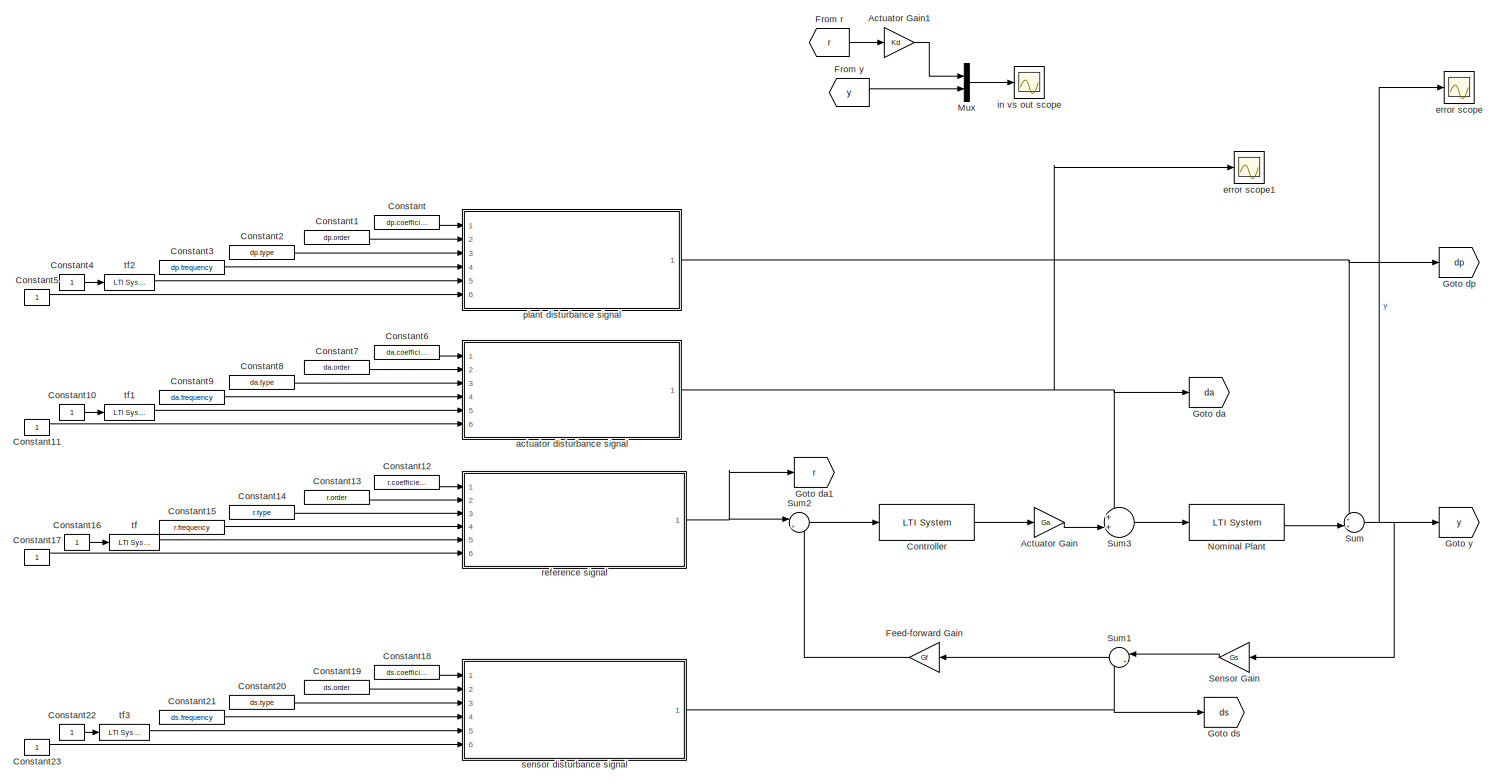
[diagram: root canvas - part 1/1, most of the canvas]
MODEL system_model_user_friendly
KIND model
BLOCK [Gain] Actuator Gain
  Gain = Ga
  OutDataTypeMode = Inherit via internal rule
  OutDataTypeStr = Inherit: Inherit via internal rule
  ParamDataTypeStr = Inherit: Inherit via internal rule
  ParameterDataTypeMode = Inherit via internal rule
  SID = 92
  SaturateOnIntegerOverflow = off
BLOCK [Gain] Actuator Gain1
  Gain = Kd
  OutDataTypeMode = Inherit via internal rule
  OutDataTypeStr = Inherit: Inherit via internal rule
  ParamDataTypeStr = Inherit: Inherit via internal rule
  ParameterDataTypeMode = Inherit via internal rule
  SID = 173
  SaturateOnIntegerOverflow = off
BLOCK [Constant] Constant
  OutDataType = fixdt(1, 16)
  OutScaling = 2^0
  SID = 93
  Value = dp.coefficient
BLOCK [Constant] Constant1
  OutDataType = fixdt(1, 16)
  OutScaling = 2^0
  SID = 94
  Value = dp.order
BLOCK [Constant] Constant10
  OutDataType = fixdt(1, 16)
  OutScaling = 2^0
  SID = 95
BLOCK [Constant] Constant11
  OutDataType = fixdt(1, 16)
  OutScaling = 2^0
  SID = 169
BLOCK [Constant] Constant12
  OutDataType = fixdt(1, 16)
  OutScaling = 2^0
  SID = 96
  Value = r.coefficient
BLOCK [Constant] Constant13
  OutDataType = fixdt(1, 16)
  OutScaling = 2^0
  SID = 97
  Value = r.order
BLOCK [Constant] Constant14
  OutDataType = fixdt(1, 16)
  OutScaling = 2^0
  SID = 98
  Value = r.type
BLOCK [Constant] Constant15
  OutDataType = fixdt(1, 16)
  OutScaling = 2^0
  SID = 99
  Value = r.frequency
BLOCK [Constant] Constant16
  OutDataType = fixdt(1, 16)
  OutScaling = 2^0
  SID = 100
BLOCK [Constant] Constant17
  OutDataType = fixdt(1, 16)
  OutScaling = 2^0
  SID = 170
BLOCK [Constant] Constant18
  OutDataType = fixdt(1, 16)
  OutScaling = 2^0
  SID = 101
  Value = ds.coefficient
BLOCK [Constant] Constant19
  OutDataType = fixdt(1, 16)
  OutScaling = 2^0
  SID = 102
  Value = ds.order
BLOCK [Constant] Constant2
  OutDataType = fixdt(1, 16)
  OutScaling = 2^0
  SID = 103
  Value = dp.type
BLOCK [Constant] Constant20
  OutDataType = fixdt(1, 16)
  OutScaling = 2^0
  SID = 104
  Value = ds.type
BLOCK [Constant] Constant21
  OutDataType = fixdt(1, 16)
  OutScaling = 2^0
  SID = 105
  Value = ds.frequency
BLOCK [Constant] Constant22
  OutDataType = fixdt(1, 16)
  OutScaling = 2^0
  SID = 106
BLOCK [Constant] Constant23
  OutDataType = fixdt(1, 16)
  OutScaling = 2^0
  SID = 171
BLOCK [Constant] Constant3
  OutDataType = fixdt(1, 16)
  OutScaling = 2^0
  SID = 107
  Value = dp.frequency
BLOCK [Constant] Constant4
  OutDataType = fixdt(1, 16)
  OutScaling = 2^0
  SID = 108
BLOCK [Constant] Constant5
  OutDataType = fixdt(1, 16)
  OutScaling = 2^0
  SID = 168
BLOCK [Constant] Constant6
  OutDataType = fixdt(1, 16)
  OutScaling = 2^0
  SID = 109
  Value = da.coefficient
BLOCK [Constant] Constant7
  OutDataType = fixdt(1, 16)
  OutScaling = 2^0
  SID = 110
  Value = da.order
BLOCK [Constant] Constant8
  OutDataType = fixdt(1, 16)
  OutScaling = 2^0
  SID = 111
  Value = da.type
BLOCK [Constant] Constant9
  OutDataType = fixdt(1, 16)
  OutScaling = 2^0
  SID = 112
  Value = da.frequency
BLOCK [Reference] Controller  REF=cstblocks/LTI System
  FunctionWithSeparateData = off
  IC = []
  Ports = [1, 1]
  RTWMemSecDataConstants = Inherit from model
  RTWMemSecDataInternal = Inherit from model
  RTWMemSecDataParameters = Inherit from model
  RTWMemSecFuncExecute = Inherit from model
  RTWMemSecFuncInitTerm = Inherit from model
  SID = 113
  ShowPortLabels = FromPortIcon
  SourceBlock = cstblocks/LTI System
  SourceType = LTI Block
  SystemSampleTime = -1
  sys = Gc.mod.value
BLOCK [Gain] Feed-forward Gain
  Gain = Gf
  OutDataTypeMode = Inherit via internal rule
  OutDataTypeStr = Inherit: Inherit via internal rule
  ParamDataTypeStr = Inherit: Inherit via internal rule
  ParameterDataTypeMode = Inherit via internal rule
  SID = 115
  SaturateOnIntegerOverflow = off
BLOCK [From] From r
  GotoTag = r
  SID = 174
BLOCK [From] From y
  GotoTag = y
  SID = 175
BLOCK [Goto] Goto da
  GotoTag = da
  SID = 131
  TagVisibility = local
BLOCK [Goto] Goto da1
  GotoTag = r
  SID = 132
  TagVisibility = local
BLOCK [Goto] Goto dp
  GotoTag = dp
  SID = 134
  TagVisibility = local
BLOCK [Goto] Goto ds
  GotoTag = ds
  SID = 137
  TagVisibility = local
BLOCK [Goto] Goto y
  GotoTag = y
  SID = 139
  TagVisibility = local
BLOCK [Mux] Mux
  DisplayOption = bar
  Inputs = 2
  Ports = [2, 1]
  SID = 176
BLOCK [Reference] Nominal Plant  REF=cstblocks/LTI System
  FunctionWithSeparateData = off
  IC = []
  Ports = [1, 1]
  RTWMemSecDataConstants = Inherit from model
  RTWMemSecDataInternal = Inherit from model
  RTWMemSecDataParameters = Inherit from model
  RTWMemSecFuncExecute = Inherit from model
  RTWMemSecFuncInitTerm = Inherit from model
  SID = 145
  ShowPortLabels = FromPortIcon
  SourceBlock = cstblocks/LTI System
  SourceType = LTI Block
  SystemSampleTime = -1
  sys = Gp.nominal.tf
BLOCK [Gain] Sensor Gain
  Gain = Gs
  OutDataTypeMode = Inherit via internal rule
  OutDataTypeStr = Inherit: Inherit via internal rule
  ParamDataTypeStr = Inherit: Inherit via internal rule
  ParameterDataTypeMode = Inherit via internal rule
  SID = 146
  SaturateOnIntegerOverflow = off
BLOCK [Sum] Sum
  IconShape = round
  InputSameDT = off
  Inputs = ++|
  OutDataTypeMode = Inherit via internal rule
  OutDataTypeStr = Inherit: Inherit via internal rule
  Ports = [2, 1]
  SID = 147
  SaturateOnIntegerOverflow = off
BLOCK [Sum] Sum1
  IconShape = round
  InputSameDT = off
  Inputs = |++
  OutDataTypeMode = Inherit via internal rule
  OutDataTypeStr = Inherit: Inherit via internal rule
  Ports = [2, 1]
  SID = 148
  SaturateOnIntegerOverflow = off
BLOCK [Sum] Sum2
  IconShape = round
  InputSameDT = off
  Inputs = |+-
  OutDataTypeMode = Inherit via internal rule
  OutDataTypeStr = Inherit: Inherit via internal rule
  Ports = [2, 1]
  SID = 150
  SaturateOnIntegerOverflow = off
BLOCK [Sum] Sum3
  IconShape = round
  InputSameDT = off
  Inputs = ++|
  OutDataTypeMode = Inherit via internal rule
  OutDataTypeStr = Inherit: Inherit via internal rule
  Ports = [2, 1]
  SID = 151
  SaturateOnIntegerOverflow = off
BLOCK [ModelReference] actuator disturbance signal
  CopyOfModelName = input_signal
  ModelNameDialog = input_signal
  ModelReferenceVersion = 1.17
  Ports = [6, 1]
  SID = 153
BLOCK [Scope] error scope
  DataFormat = StructureWithTime
  Floating = off
  LimitDataPoints = off
  NumInputPorts = 1
  Ports = [1]
  SID = 159
  SampleInput = on
  SampleTime = 0
  SaveName = ScopeData2
  TimeRange = 0.5
  YMax = 7.9438
  YMin = 7.9422
BLOCK [Scope] error scope1
  DataFormat = StructureWithTime
  Floating = off
  LimitDataPoints = off
  NumInputPorts = 1
  Ports = [1]
  SID = 178
  SampleInput = on
  SampleTime = 0
  SaveName = ScopeData1
  TimeRange = 0.5
  YMax = 0.0635
  YMin = 0.055
BLOCK [Scope] in vs out scope
  DataFormat = StructureWithTime
  Floating = off
  LimitDataPoints = off
  NumInputPorts = 1
  Ports = [1]
  SID = 177
  SampleInput = on
  SampleTime = 0
  TimeRange = 0.5
  YMax = 8.3
  YMin = 7.45
BLOCK [ModelReference] plant disturbance signal
  CopyOfModelName = input_signal
  ModelNameDialog = input_signal
  ModelReferenceVersion = 1.17
  Ports = [6, 1]
  SID = 160
BLOCK [ModelReference] reference signal
  CopyOfModelName = input_signal
  ModelNameDialog = input_signal
  ModelReferenceVersion = 1.17
  Ports = [6, 1]
  SID = 161
BLOCK [ModelReference] sensor disturbance signal
  CopyOfModelName = input_signal
  ModelNameDialog = input_signal
  ModelReferenceVersion = 1.17
  Ports = [6, 1]
  SID = 162
BLOCK [Reference] tf  REF=cstblocks/LTI System
  FunctionWithSeparateData = off
  IC = []
  Ports = [1, 1]
  RTWMemSecDataConstants = Inherit from model
  RTWMemSecDataInternal = Inherit from model
  RTWMemSecDataParameters = Inherit from model
  RTWMemSecFuncExecute = Inherit from model
  RTWMemSecFuncInitTerm = Inherit from model
  SID = 163
  ShowPortLabels = FromPortIcon
  SourceBlock = cstblocks/LTI System
  SourceType = LTI Block
  SystemSampleTime = -1
  sys = r.tf
BLOCK [Reference] tf1  REF=cstblocks/LTI System
  FunctionWithSeparateData = off
  IC = []
  Ports = [1, 1]
  RTWMemSecDataConstants = Inherit from model
  RTWMemSecDataInternal = Inherit from model
  RTWMemSecDataParameters = Inherit from model
  RTWMemSecFuncExecute = Inherit from model
  RTWMemSecFuncInitTerm = Inherit from model
  SID = 164
  ShowPortLabels = FromPortIcon
  SourceBlock = cstblocks/LTI System
  SourceType = LTI Block
  SystemSampleTime = -1
  sys = da.tf
BLOCK [Reference] tf2  REF=cstblocks/LTI System
  FunctionWithSeparateData = off
  IC = []
  Ports = [1, 1]
  RTWMemSecDataConstants = Inherit from model
  RTWMemSecDataInternal = Inherit from model
  RTWMemSecDataParameters = Inherit from model
  RTWMemSecFuncExecute = Inherit from model
  RTWMemSecFuncInitTerm = Inherit from model
  SID = 165
  ShowPortLabels = FromPortIcon
  SourceBlock = cstblocks/LTI System
  SourceType = LTI Block
  SystemSampleTime = -1
  sys = dp.tf
BLOCK [Reference] tf3  REF=cstblocks/LTI System
  FunctionWithSeparateData = off
  IC = []
  Ports = [1, 1]
  RTWMemSecDataConstants = Inherit from model
  RTWMemSecDataInternal = Inherit from model
  RTWMemSecDataParameters = Inherit from model
  RTWMemSecFuncExecute = Inherit from model
  RTWMemSecFuncInitTerm = Inherit from model
  SID = 166
  ShowPortLabels = FromPortIcon
  SourceBlock = cstblocks/LTI System
  SourceType = LTI Block
  SystemSampleTime = -1
  sys = ds.tf
LINE Actuator Gain1:1 -> Mux:1
LINE Actuator Gain:1 -> Sum3:2
LINE Constant10:1 -> tf1:1
LINE Constant11:1 -> actuator disturbance signal:6
LINE Constant12:1 -> reference signal:1
LINE Constant13:1 -> reference signal:2
LINE Constant14:1 -> reference signal:3
LINE Constant15:1 -> reference signal:4
LINE Constant16:1 -> tf:1
LINE Constant17:1 -> reference signal:6
LINE Constant18:1 -> sensor disturbance signal:1
LINE Constant19:1 -> sensor disturbance signal:2
LINE Constant1:1 -> plant disturbance signal:2
LINE Constant20:1 -> sensor disturbance signal:3
LINE Constant21:1 -> sensor disturbance signal:4
LINE Constant22:1 -> tf3:1
LINE Constant23:1 -> sensor disturbance signal:6
LINE Constant2:1 -> plant disturbance signal:3
LINE Constant3:1 -> plant disturbance signal:4
LINE Constant4:1 -> tf2:1
LINE Constant5:1 -> plant disturbance signal:6
LINE Constant6:1 -> actuator disturbance signal:1
LINE Constant7:1 -> actuator disturbance signal:2
LINE Constant8:1 -> actuator disturbance signal:3
LINE Constant9:1 -> actuator disturbance signal:4
LINE Constant:1 -> plant disturbance signal:1
LINE Controller:1 -> Actuator Gain:1
LINE Feed-forward Gain:1 -> Sum2:2
LINE From r:1 -> Actuator Gain1:1
LINE From y:1 -> Mux:2
LINE Mux:1 -> in vs out scope:1
LINE Nominal Plant:1 -> Sum:2
LINE Sensor Gain:1 -> Sum1:1
LINE Sum1:1 -> Feed-forward Gain:1
LINE Sum2:1 -> Controller:1
LINE Sum3:1 -> Nominal Plant:1
NET Sum:1 -> Goto y:1, Sensor Gain:1, error scope:1
NET actuator disturbance signal:1 -> Goto da:1, Sum3:1, error scope1:1
NET plant disturbance signal:1 -> Goto dp:1, Sum:1
NET reference signal:1 -> Goto da1:1, Sum2:1
NET sensor disturbance signal:1 -> Goto ds:1, Sum1:2
LINE tf1:1 -> actuator disturbance signal:5
LINE tf2:1 -> plant disturbance signal:5
LINE tf3:1 -> sensor disturbance signal:5
LINE tf:1 -> reference signal:5
note: NET lines group one-source signal fan-out (src -> all destinations, sorted); 1:1 wires keep LINE
